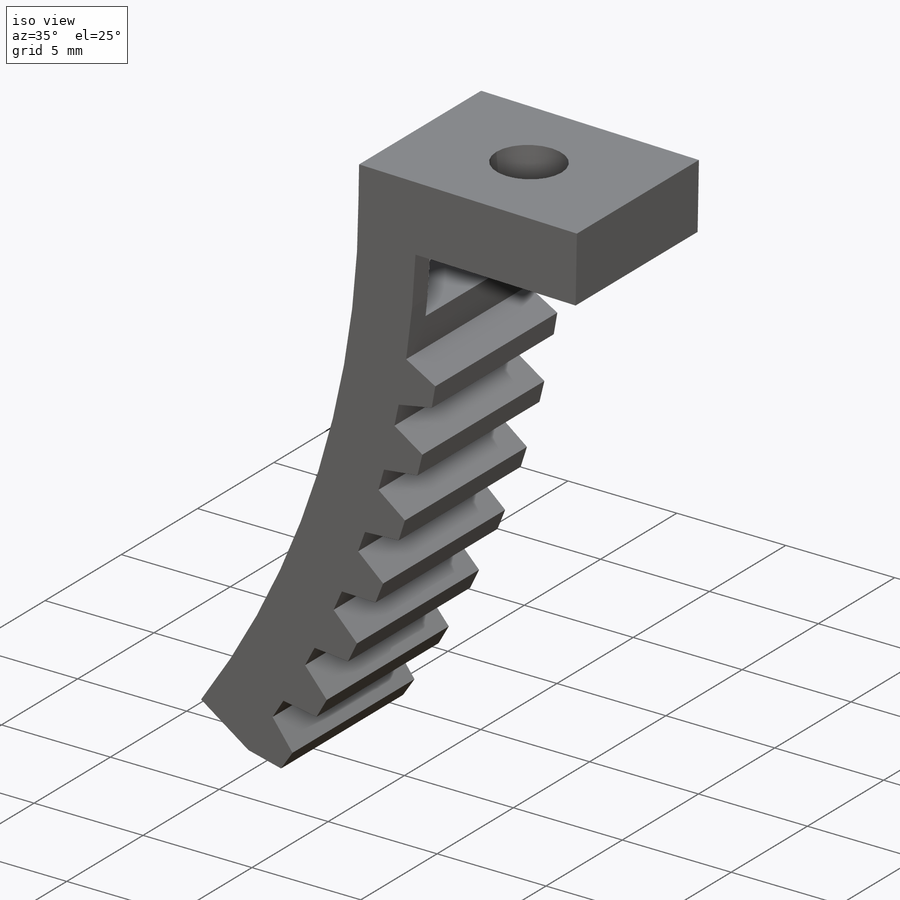
[diagram: iso view]
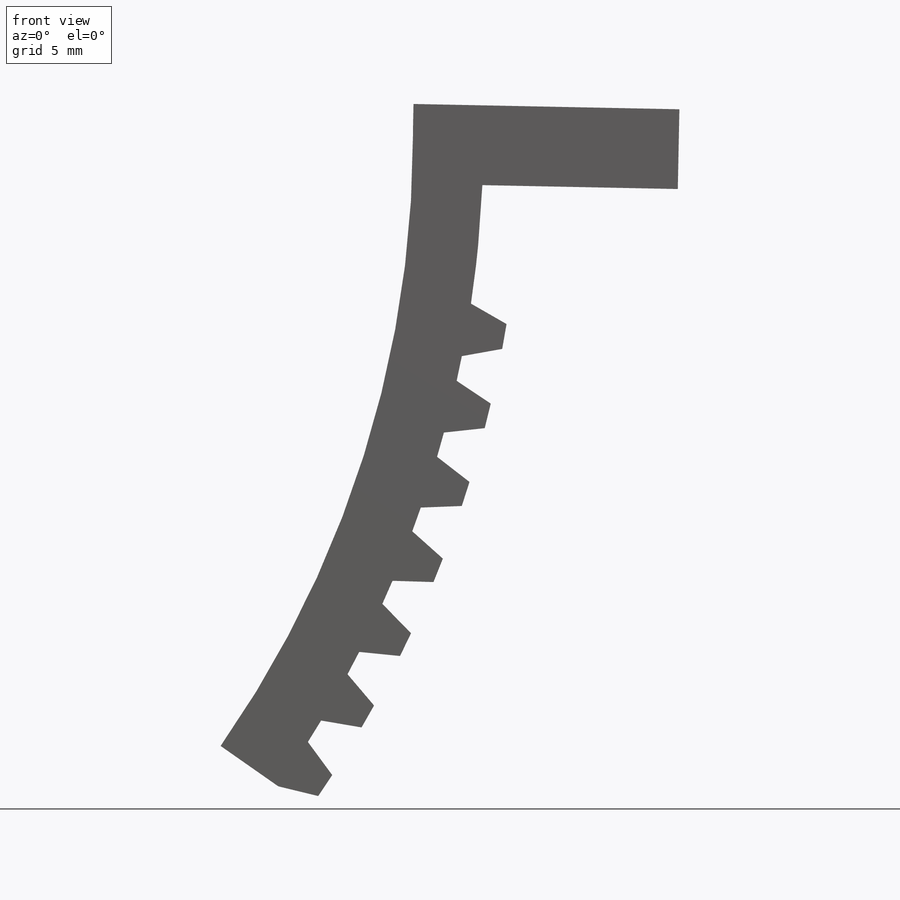
[diagram: front view]
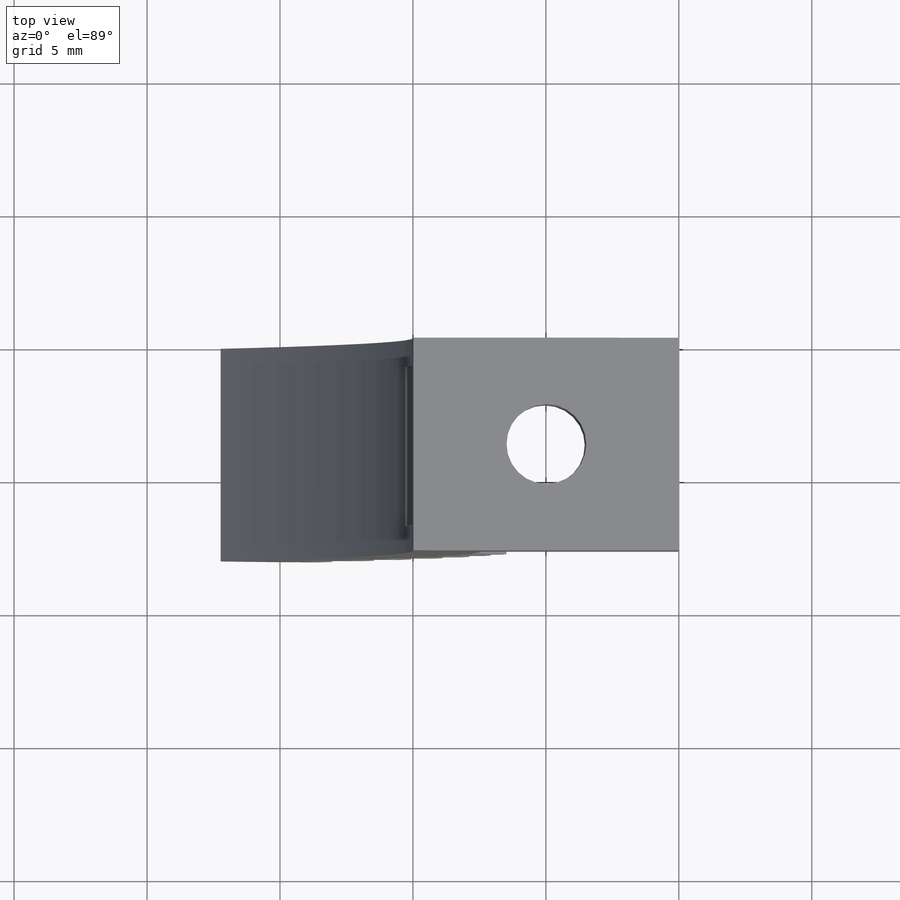
[diagram: top view]
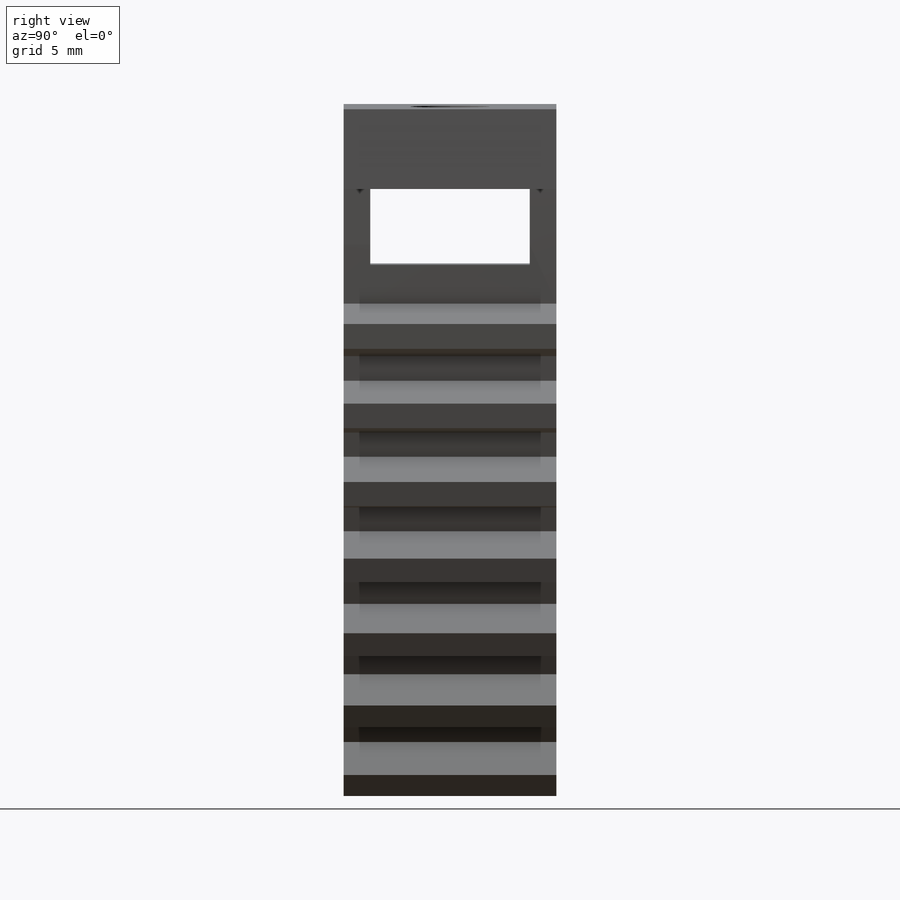
[diagram: right view]
SOLIDWORKS PART (.sldprt)
format: sldprt  version: not decoded by parser v0  size: 222,208 bytes
history: native  units: mm
features: sketch x7, extrude x4, cut_extrude x3, material x1, pattern_circular x1 + 1 further entry (+14 scaffold rows collapsed)
feature tree (31):
  scaffold x14  (default folders/planes/origin — collapsed)
  material  "Material <not specified>"
  "Annotations"  RD1=0.947001mm
  sketch  "Sketch1"  dims[c1.D3=40.0mm c1.D1=10.0mm c1.D2=10.0mm c2.D2=35.0deg c2.D4=~7.660444mm]
  extrude  "Extrude1"  Depth=8mm
  sketch  "Sketch3"  dims[c1.D1=10.0mm c2.D1=1.145deg c3.D1=~10.001997mm c3.pedalangle=1.145deg]
  extrude  "Extrude5"  [1 undecoded]
  sketch  "Sketch4"
  extrude  "Extrude6"  Depth=1mm
  sketch  "Sketch2"  dims[D1=3.0mm]
  cut_extrude  "Extrude2"  Depth=3mm
  sketch  "Sketch5"  dims[D1=85.3mm D2=3.0mm]
  cut_extrude  "Extrude7"  [1 undecoded]
  sketch  "Sketch6"  dims[D1=6.0mm]
  cut_extrude  "Extrude8"  Depth=3mm
  sketch  "Sketch7"  dims[c1.D1=0.95mm c1.D2=~5.688553mm c2.D2=70.0deg c2.D3=1.45mm]
  extrude  "Extrude9"  Depth=8mm
  pattern_circular  "CirPattern1"  Count=7 Angle=23.8deg
decode coverage: 12 of 15 modeling features carry decoded parameters; 1 rows unclassified (native names shown)
note: ~ marks probable driven/reference dimensions
note: 2 parameter values undecoded
note: suppression state not decoded; provenance and decode notes live in map.json
